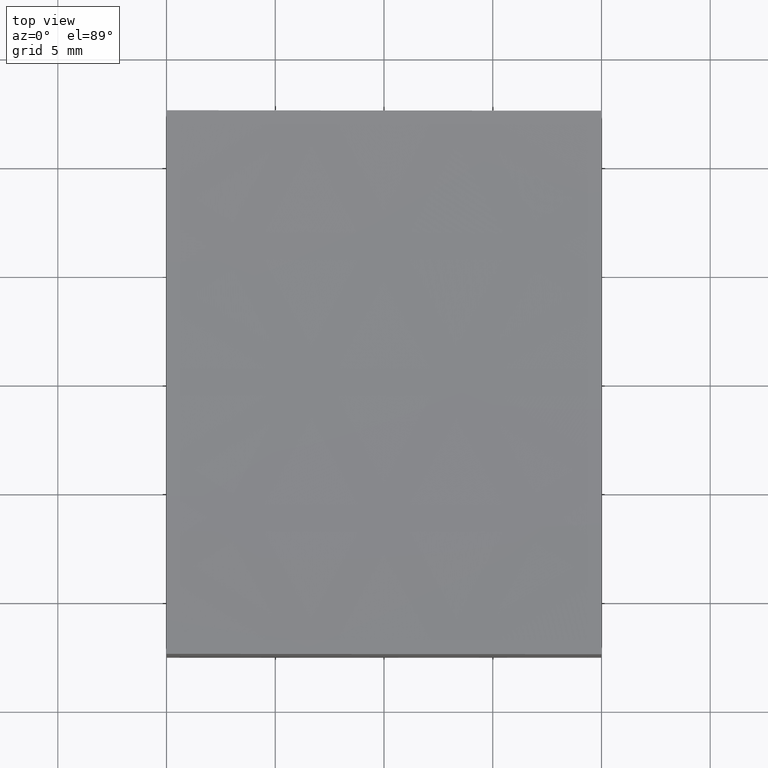
[diagram: clean part render]
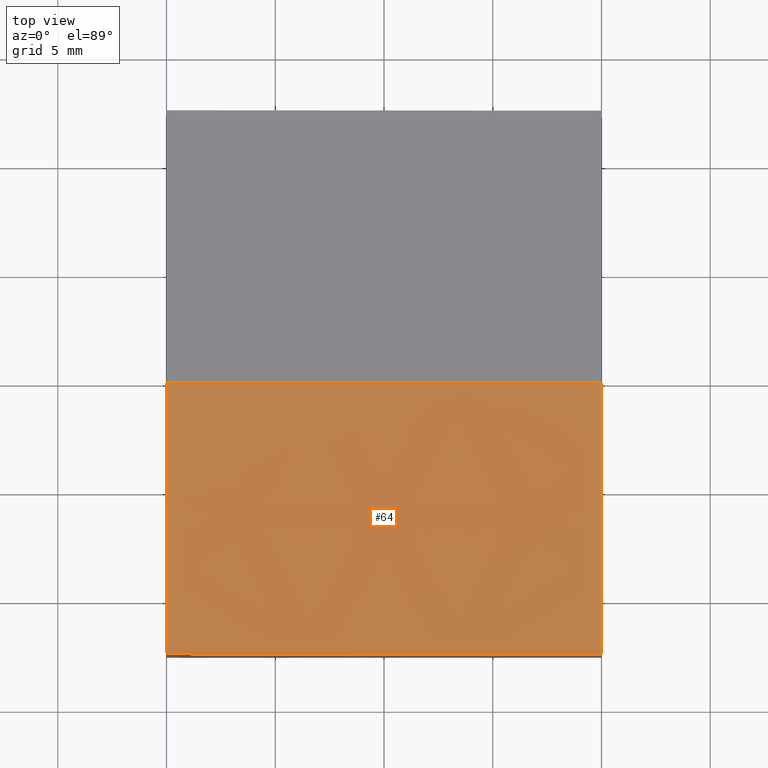
[diagram: same view with one face highlighted and labeled with its STEP entity id]
A machine part, top view. The second image highlights one B-rep face of the part: STEP entity #64.
In plain terms, the highlighted spherical surface has radius 300 mm.
Its self-contained STEP definition (entity closure, byte-faithful):
#5 = CARTESIAN_POINT ( 'NONE',  ( 15.00000000000004086, -12.49999999999999822, 299.0000000000000000 ) ) ;
#9 = VERTEX_POINT ( 'NONE', #179 ) ;
#29 = CARTESIAN_POINT ( 'NONE',  ( -9.999999999999996447, 0.000000000000000000, 299.0000000000000000 ) ) ;
#35 = ORIENTED_EDGE ( 'NONE', *, *, #149, .F. ) ;
#43 = CARTESIAN_POINT ( 'NONE',  ( 15.00000000000003908, 0.000000000000000000, 299.0000000000000000 ) ) ;
#59 = CIRCLE ( 'NONE', #238, 300.0000000000000000 ) ;
#64 = ADVANCED_FACE ( 'NONE', ( #202 ), #65, .F. ) ;
#65 = SPHERICAL_SURFACE ( 'NONE', #170, 300.0000000000000000 ) ;
#81 = AXIS2_PLACEMENT_3D ( 'NONE', #218, #222, #266 ) ;
#82 = VERTEX_POINT ( 'NONE', #182 ) ;
#84 = EDGE_LOOP ( 'NONE', ( #231, #35, #171, #215 ) ) ;
#88 = EDGE_CURVE ( 'NONE', #225, #247, #209, .T. ) ;
#91 = CARTESIAN_POINT ( 'NONE',  ( 10.00000000000000178, -12.50000000000000000, -0.6977644227598167603 ) ) ;
#114 = DIRECTION ( 'NONE',  ( 0.000000000000000000, 0.000000000000000000, -1.000000000000000000 ) ) ;
#127 = CIRCLE ( 'NONE', #233, 299.7394702070449171 ) ;
#131 = DIRECTION ( 'NONE',  ( 0.000000000000000000, -1.000000000000000000, 0.000000000000000000 ) ) ;
#135 = DIRECTION ( 'NONE',  ( 0.000000000000000000, 0.000000000000000000, -1.000000000000000000 ) ) ;
#139 = DIRECTION ( 'NONE',  ( -1.000000000000000000, 0.000000000000000000, 0.000000000000000000 ) ) ;
#149 = EDGE_CURVE ( 'NONE', #82, #9, #217, .T. ) ;
#152 = CARTESIAN_POINT ( 'NONE',  ( 15.00000000000003908, 0.000000000000000000, 299.0000000000000000 ) ) ;
#154 = DIRECTION ( 'NONE',  ( 0.000000000000000000, 1.000000000000000000, -0.000000000000000000 ) ) ;
#161 = CARTESIAN_POINT ( 'NONE',  ( 10.00000000000000178, 0.000000000000000000, -0.9583304394129021908 ) ) ;
#170 = AXIS2_PLACEMENT_3D ( 'NONE', #152, #154, #139 ) ;
#171 = ORIENTED_EDGE ( 'NONE', *, *, #219, .F. ) ;
#179 = CARTESIAN_POINT ( 'NONE',  ( -9.999999999999996447, 0.000000000000000000, 0.04348142246501929264 ) ) ;
#182 = CARTESIAN_POINT ( 'NONE',  ( -9.999999999999998224, -12.50000000000000355, 0.3049213662870142727 ) ) ;
#198 = DIRECTION ( 'NONE',  ( 1.000000000000000000, 0.000000000000000000, 0.000000000000000000 ) ) ;
#202 = FACE_OUTER_BOUND ( 'NONE', #84, .T. ) ;
#205 = DIRECTION ( 'NONE',  ( -1.734723475976807094E-16, 1.000000000000000000, 0.000000000000000000 ) ) ;
#209 = CIRCLE ( 'NONE', #81, 299.9583304394128618 ) ;
#215 = ORIENTED_EDGE ( 'NONE', *, *, #88, .F. ) ;
#217 = CIRCLE ( 'NONE', #249, 298.9565185775349505 ) ;
#218 = CARTESIAN_POINT ( 'NONE',  ( 10.00000000000000178, 0.000000000000000000, 299.0000000000000000 ) ) ;
#219 = EDGE_CURVE ( 'NONE', #247, #82, #127, .T. ) ;
#222 = DIRECTION ( 'NONE',  ( -1.000000000000000000, 0.000000000000000000, 0.000000000000000000 ) ) ;
#225 = VERTEX_POINT ( 'NONE', #161 ) ;
#231 = ORIENTED_EDGE ( 'NONE', *, *, #252, .F. ) ;
#233 = AXIS2_PLACEMENT_3D ( 'NONE', #5, #205, #241 ) ;
#238 = AXIS2_PLACEMENT_3D ( 'NONE', #43, #131, #135 ) ;
#241 = DIRECTION ( 'NONE',  ( -1.000000000000000000, -1.736231275892908730E-16, 0.000000000000000000 ) ) ;
#247 = VERTEX_POINT ( 'NONE', #91 ) ;
#249 = AXIS2_PLACEMENT_3D ( 'NONE', #29, #198, #114 ) ;
#252 = EDGE_CURVE ( 'NONE', #9, #225, #59, .T. ) ;
#266 = DIRECTION ( 'NONE',  ( 0.000000000000000000, 0.000000000000000000, 1.000000000000000000 ) ) ;